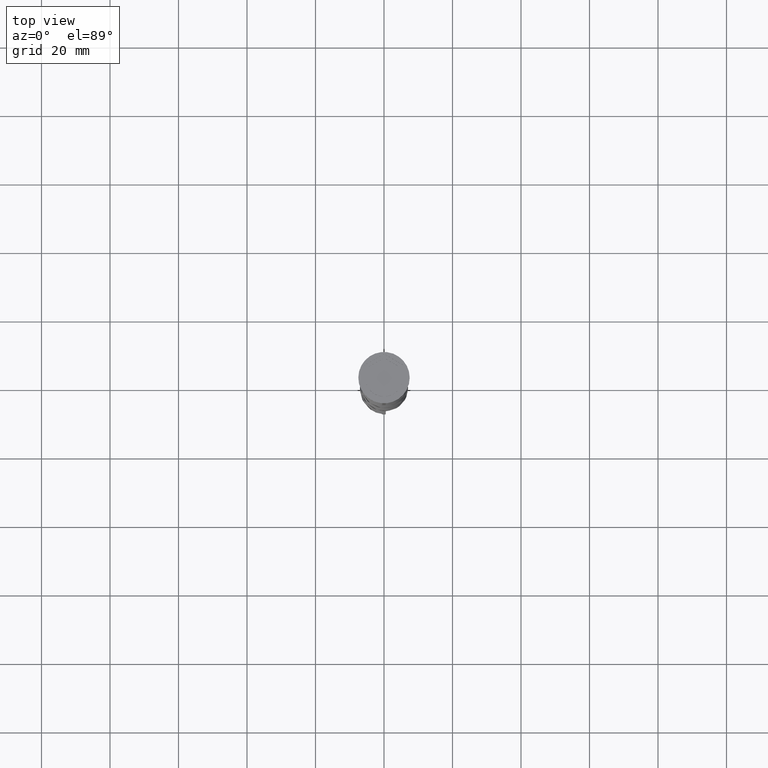
[diagram: clean part render]
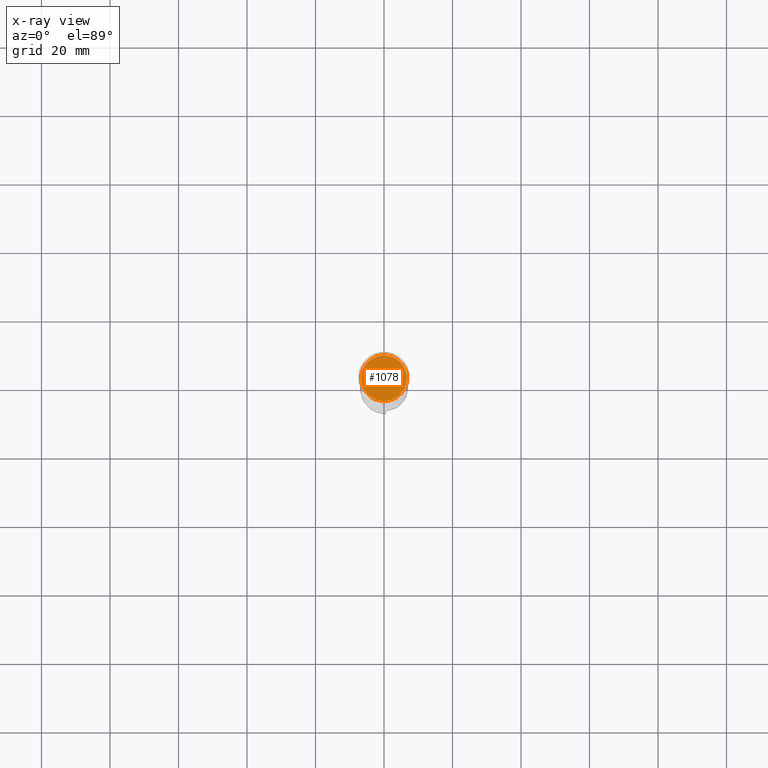
[diagram: x-ray — body ghosted, one internal face saturated and labeled with its STEP entity id]
A machine part, top view, then the same camera in x-ray: the body is ghosted and one INTERNAL B-rep face — a face not visible from any outside direction — is saturated and labeled: STEP entity #1078.
In plain terms, the highlighted planar face has unit normal (0, 0, -1).
Its self-contained STEP definition (entity closure, byte-faithful):
#197 = DIRECTION ( 'NONE',  ( -0.000000000000000000, -0.000000000000000000, 1.000000000000000000 ) ) ;
#227 = VERTEX_POINT ( 'NONE', #1599 ) ;
#381 = EDGE_LOOP ( 'NONE', ( #1426, #2026 ) ) ;
#488 = EDGE_CURVE ( 'NONE', #3081, #227, #1826, .T. ) ;
#970 = AXIS2_PLACEMENT_3D ( 'NONE', #3801, #3168, #3479 ) ;
#1078 = ADVANCED_FACE ( 'NONE', ( #3495 ), #2317, .F. ) ;
#1149 = DIRECTION ( 'NONE',  ( 0.000000000000000000, 0.000000000000000000, -1.000000000000000000 ) ) ;
#1177 = EDGE_CURVE ( 'NONE', #227, #3081, #2187, .T. ) ;
#1214 = AXIS2_PLACEMENT_3D ( 'NONE', #3398, #197, #3432 ) ;
#1426 = ORIENTED_EDGE ( 'NONE', *, *, #488, .T. ) ;
#1599 = CARTESIAN_POINT ( 'NONE',  ( 6.700000000000001066, 8.388830574159370862E-16, -10.50000000000000178 ) ) ;
#1687 = CARTESIAN_POINT ( 'NONE',  ( -6.700000000000001066, 0.000000000000000000, -10.50000000000000178 ) ) ;
#1764 = AXIS2_PLACEMENT_3D ( 'NONE', #2627, #1149, #3516 ) ;
#1826 = CIRCLE ( 'NONE', #1214, 6.700000000000001066 ) ;
#2026 = ORIENTED_EDGE ( 'NONE', *, *, #1177, .T. ) ;
#2187 = CIRCLE ( 'NONE', #970, 6.700000000000001066 ) ;
#2317 = PLANE ( 'NONE',  #1764 ) ;
#2627 = CARTESIAN_POINT ( 'NONE',  ( 0.000000000000000000, 0.000000000000000000, -10.50000000000000178 ) ) ;
#3081 = VERTEX_POINT ( 'NONE', #1687 ) ;
#3168 = DIRECTION ( 'NONE',  ( -0.000000000000000000, -0.000000000000000000, 1.000000000000000000 ) ) ;
#3398 = CARTESIAN_POINT ( 'NONE',  ( 0.000000000000000000, 0.000000000000000000, -10.50000000000000178 ) ) ;
#3432 = DIRECTION ( 'NONE',  ( -1.000000000000000000, 0.000000000000000000, 0.000000000000000000 ) ) ;
#3479 = DIRECTION ( 'NONE',  ( -1.000000000000000000, 0.000000000000000000, 0.000000000000000000 ) ) ;
#3495 = FACE_OUTER_BOUND ( 'NONE', #381, .T. ) ;
#3516 = DIRECTION ( 'NONE',  ( -1.000000000000000000, 0.000000000000000000, -0.000000000000000000 ) ) ;
#3801 = CARTESIAN_POINT ( 'NONE',  ( 0.000000000000000000, 0.000000000000000000, -10.50000000000000178 ) ) ;